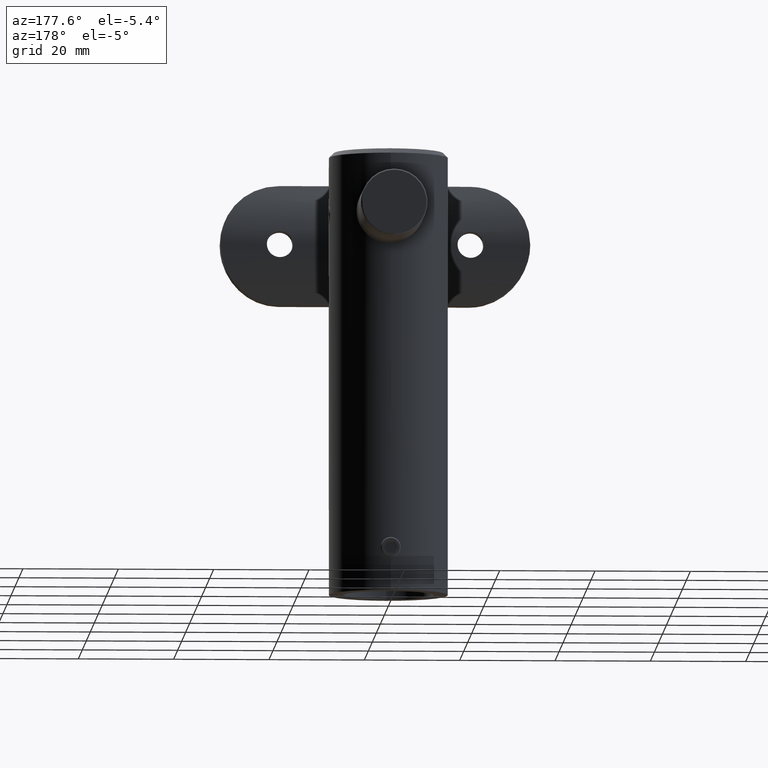
[diagram: clean part render]
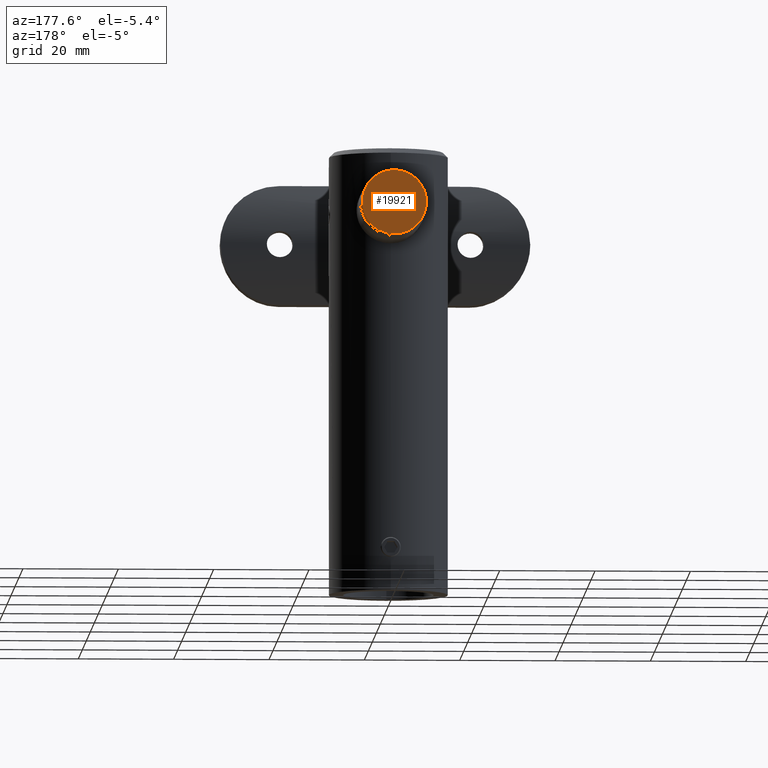
[diagram: same view with one face highlighted and labeled with its STEP entity id]
A machine part, auxiliary view. The second image highlights one B-rep face of the part: STEP entity #19921.
In plain terms, the highlighted planar face has unit normal (0, -1, 0).
Its self-contained STEP definition (entity closure, byte-faithful):
#359 = EDGE_CURVE ( 'NONE', #20789, #3945, #8322, .T. ) ;
#1212 = AXIS2_PLACEMENT_3D ( 'NONE', #1219, #16142, #4641 ) ;
#1219 = CARTESIAN_POINT ( 'NONE',  ( 0.000000000000000000, 0.000000000000000000, 0.000000000000000000 ) ) ;
#1744 = FACE_OUTER_BOUND ( 'NONE', #21198, .T. ) ;
#3781 = AXIS2_PLACEMENT_3D ( 'NONE', #16292, #8419, #6639 ) ;
#3945 = VERTEX_POINT ( 'NONE', #6917 ) ;
#4641 = DIRECTION ( 'NONE',  ( 0.000000000000000000, 0.000000000000000000, 1.000000000000000000 ) ) ;
#6639 = DIRECTION ( 'NONE',  ( 0.000000000000000000, 0.000000000000000000, 1.000000000000000000 ) ) ;
#6782 = CIRCLE ( 'NONE', #3781, 6.750000000000006217 ) ;
#6917 = CARTESIAN_POINT ( 'NONE',  ( 0.000000000000000000, 0.000000000000000000, 6.750000000000006217 ) ) ;
#7752 = AXIS2_PLACEMENT_3D ( 'NONE', #14890, #18194, #8408 ) ;
#8322 = CIRCLE ( 'NONE', #1212, 6.750000000000006217 ) ;
#8408 = DIRECTION ( 'NONE',  ( 0.000000000000000000, -0.000000000000000000, 1.000000000000000000 ) ) ;
#8419 = DIRECTION ( 'NONE',  ( -0.000000000000000000, -1.000000000000000000, -0.000000000000000000 ) ) ;
#10212 = PLANE ( 'NONE',  #7752 ) ;
#11190 = EDGE_CURVE ( 'NONE', #3945, #20789, #6782, .T. ) ;
#11477 = ORIENTED_EDGE ( 'NONE', *, *, #11190, .T. ) ;
#12567 = ORIENTED_EDGE ( 'NONE', *, *, #359, .T. ) ;
#14890 = CARTESIAN_POINT ( 'NONE',  ( 0.000000000000000000, 0.000000000000000000, 0.000000000000000000 ) ) ;
#16142 = DIRECTION ( 'NONE',  ( -0.000000000000000000, -1.000000000000000000, -0.000000000000000000 ) ) ;
#16292 = CARTESIAN_POINT ( 'NONE',  ( 0.000000000000000000, 0.000000000000000000, 0.000000000000000000 ) ) ;
#18194 = DIRECTION ( 'NONE',  ( 0.000000000000000000, 1.000000000000000000, 0.000000000000000000 ) ) ;
#19921 = ADVANCED_FACE ( 'NONE', ( #1744 ), #10212, .F. ) ;
#20789 = VERTEX_POINT ( 'NONE', #21163 ) ;
#21163 = CARTESIAN_POINT ( 'NONE',  ( 8.419446744138058199E-16, 0.000000000000000000, -6.750000000000006217 ) ) ;
#21198 = EDGE_LOOP ( 'NONE', ( #11477, #12567 ) ) ;